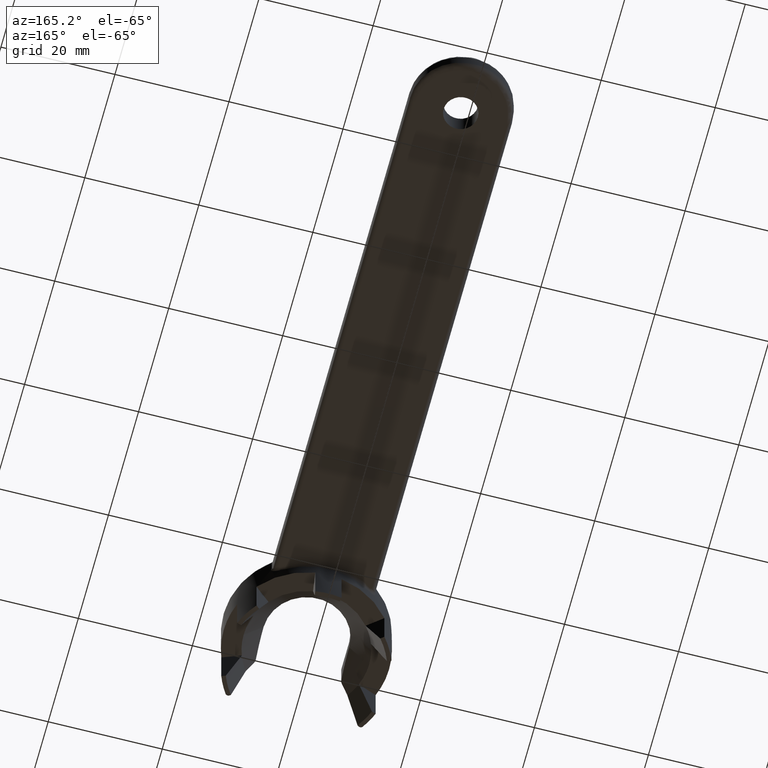
[diagram: clean part render]
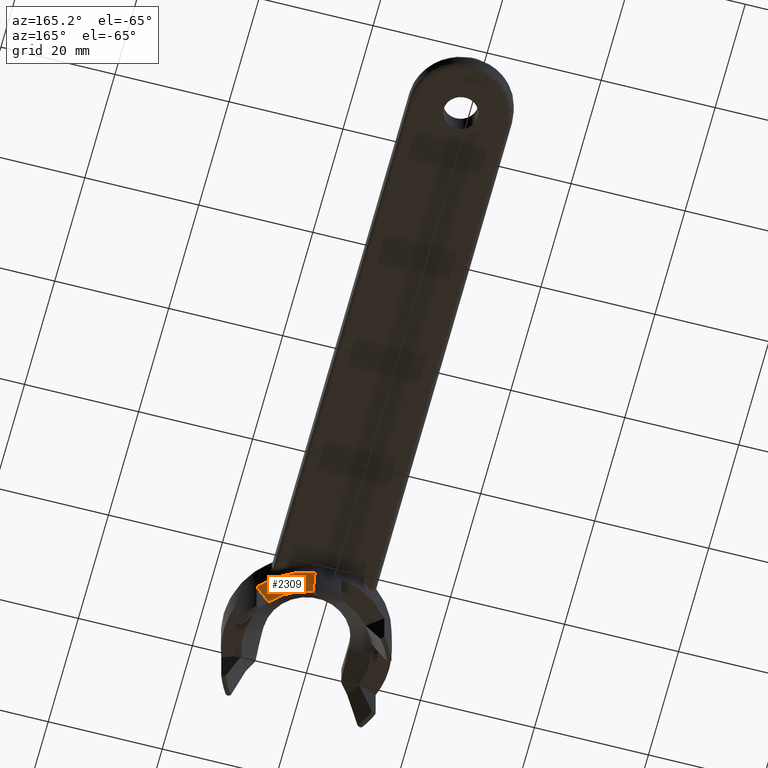
[diagram: same view with one face highlighted and labeled with its STEP entity id]
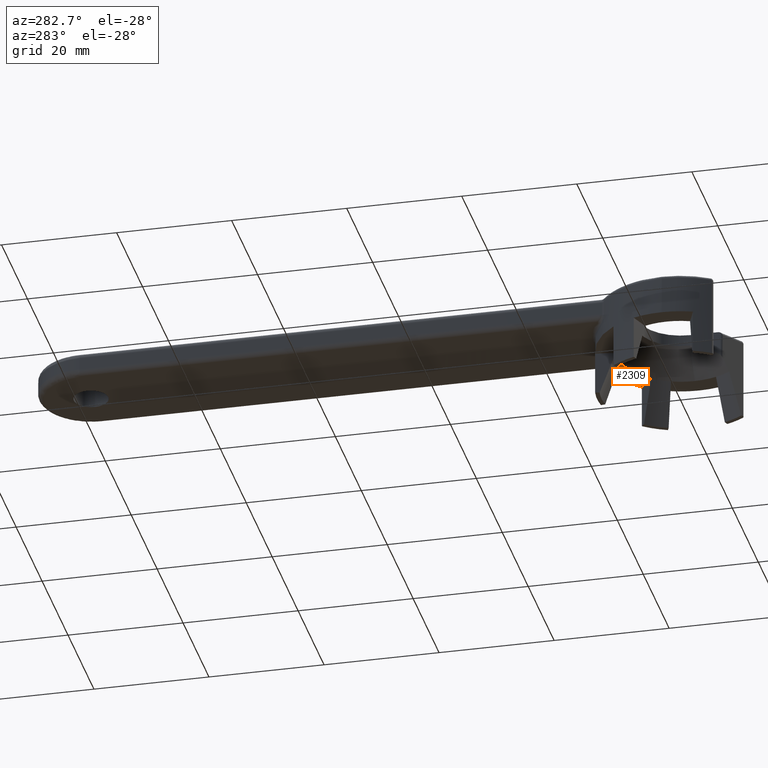
[diagram: same view with one face highlighted and labeled with its STEP entity id]
A machine part, auxiliary view. The second image highlights one B-rep face of the part: STEP entity #2309.
A second angle (auxiliary view) of the same face is appended — the face is thin or edge-on in the first view.
In plain terms, the highlighted planar face has unit normal (-0, 0, 1).
Its self-contained STEP definition (entity closure, byte-faithful):
#138 = DIRECTION ( 'NONE',  ( -0.0000000000000000000, 0.0000000000000000000, 1.000000000000000000 ) ) ;
#166 = CARTESIAN_POINT ( 'NONE',  ( 8.485338048920681300, 7.001561859638290000, -6.999999999999947600 ) ) ;
#172 = EDGE_CURVE ( 'NONE', #2234, #1893, #829, .T. ) ;
#223 = ORIENTED_EDGE ( 'NONE', *, *, #440, .F. ) ;
#241 = VECTOR ( 'NONE', #1807, 1000.000000000000100 ) ;
#391 = CARTESIAN_POINT ( 'NONE',  ( 9.826654186000000700, 8.108330716500001100, -7.000000000000000000 ) ) ;
#394 = DIRECTION ( 'NONE',  ( -0.1541015604196175100, -0.9880550131830914100, 0.0000000000000000000 ) ) ;
#440 = EDGE_CURVE ( 'NONE', #938, #2234, #1533, .T. ) ;
#516 = DIRECTION ( 'NONE',  ( -0.0000000000000000000, 0.0000000000000000000, -1.000000000000000000 ) ) ;
#708 = CARTESIAN_POINT ( 'NONE',  ( 0.0000000000000000000, 0.0000000000000000000, -7.000000000000000000 ) ) ;
#829 = CIRCLE ( 'NONE', #2031, 11.00103769100000100 ) ;
#921 = DIRECTION ( 'NONE',  ( -1.000000000000000000, 0.0000000000000000000, 0.0000000000000000000 ) ) ;
#938 = VERTEX_POINT ( 'NONE', #2113 ) ;
#997 = VECTOR ( 'NONE', #394, 1000.000000000000000 ) ;
#1168 = ORIENTED_EDGE ( 'NONE', *, *, #2529, .T. ) ;
#1270 = AXIS2_PLACEMENT_3D ( 'NONE', #1727, #516, #1937 ) ;
#1280 = CARTESIAN_POINT ( 'NONE',  ( 1.695277072943487400, 10.86963044103868400, -6.999999999999947600 ) ) ;
#1356 = CARTESIAN_POINT ( 'NONE',  ( 0.2662347079999999900, 13.25604004600000100, -7.000000000000000000 ) ) ;
#1443 = AXIS2_PLACEMENT_3D ( 'NONE', #1356, #138, #1551 ) ;
#1533 = LINE ( 'NONE', #2008, #997 ) ;
#1551 = DIRECTION ( 'NONE',  ( 0.4999999999562276300, -0.8660254038097107100, 0.0000000000000000000 ) ) ;
#1568 = FACE_OUTER_BOUND ( 'NONE', #2626, .T. ) ;
#1709 = EDGE_CURVE ( 'NONE', #938, #2377, #2063, .T. ) ;
#1727 = CARTESIAN_POINT ( 'NONE',  ( 0.0000000000000000000, 0.0000000000000000000, -6.999999995999997900 ) ) ;
#1765 = CARTESIAN_POINT ( 'NONE',  ( 11.18416327584514000, 9.228460966988857100, -6.999999995999997900 ) ) ;
#1807 = DIRECTION ( 'NONE',  ( -0.7713216051500702000, -0.6364455840279820100, -0.0000000000000000000 ) ) ;
#1832 = ORIENTED_EDGE ( 'NONE', *, *, #172, .F. ) ;
#1856 = ORIENTED_EDGE ( 'NONE', *, *, #1709, .T. ) ;
#1893 = VERTEX_POINT ( 'NONE', #166 ) ;
#1937 = DIRECTION ( 'NONE',  ( 1.000000000000000000, 8.881784197001252300E-016, 0.0000000000000000000 ) ) ;
#2008 = CARTESIAN_POINT ( 'NONE',  ( 2.234472626999999700, 14.32679769100000100, -7.000000000000000900 ) ) ;
#2031 = AXIS2_PLACEMENT_3D ( 'NONE', #708, #2148, #921 ) ;
#2063 = CIRCLE ( 'NONE', #1270, 14.50000000000000000 ) ;
#2113 = CARTESIAN_POINT ( 'NONE',  ( 2.234472627610830700, 14.32679769091676600, -6.999999997999998900 ) ) ;
#2148 = DIRECTION ( 'NONE',  ( 0.0000000000000000000, 0.0000000000000000000, -1.000000000000000000 ) ) ;
#2234 = VERTEX_POINT ( 'NONE', #1280 ) ;
#2309 = ADVANCED_FACE ( 'NONE', ( #1568 ), #2633, .F. ) ;
#2369 = LINE ( 'NONE', #391, #241 ) ;
#2377 = VERTEX_POINT ( 'NONE', #1765 ) ;
#2529 = EDGE_CURVE ( 'NONE', #2377, #1893, #2369, .T. ) ;
#2626 = EDGE_LOOP ( 'NONE', ( #1856, #1168, #1832, #223 ) ) ;
#2633 = PLANE ( 'NONE',  #1443 ) ;